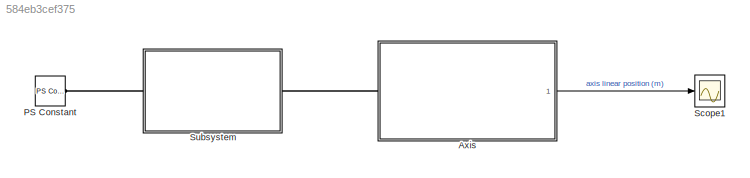
MODEL slx_584eb3cef375
KIND model
CONFIG AbsTol = auto
CONFIG FixedStep = auto
CONFIG MaxStep = auto
CONFIG MinStep = auto
CONFIG RelTol = 1e-3
CONFIG SampleTimeConstraint = Unconstrained
CONFIG Solver = ode23t
CONFIG SolverMode = Auto
CONFIG SolverName = ode23t
CONFIG StartTime = 0.0
CONFIG StopTime = 1
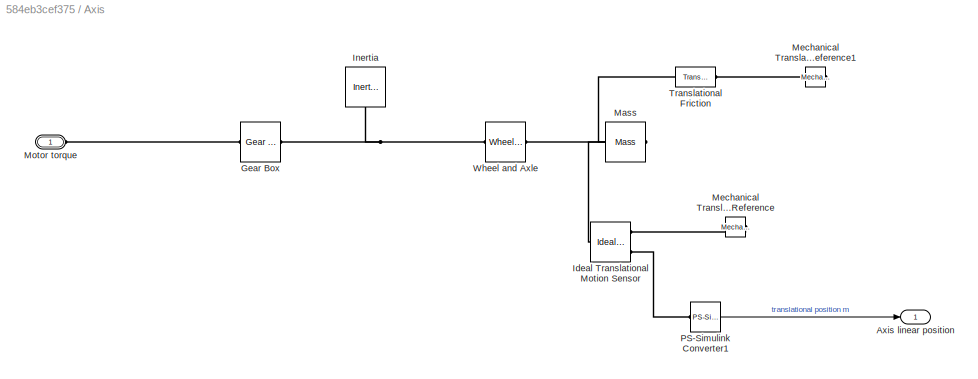
BLOCK [SubSystem] Axis
  Ports = [0, 1, 0, 0, 0, 1]
  RequestExecContextInheritance = off
  Variant = off
BLOCK [Outport] Axis/Axis linear position
  IconDisplay = Port number
BLOCK [Reference] Axis/Gear Box  REF=fl_lib/Mechanical/Mechanisms/Gear Box
  Ports = [0, 0, 0, 0, 0, 1, 1]
  SourceBlock = fl_lib/Mechanical/Mechanisms/Gear Box
  SourceType = Gear Box
BLOCK [Reference] Axis/Ideal Translational Motion Sensor  REF=fl_lib/Mechanical/Mechanical Sensors/Ideal Translational
Motion Sensor
  Ports = [0, 0, 0, 0, 0, 1, 3]
  SourceBlock = fl_lib/Mechanical/Mechanical Sensors/Ideal Translational\nMotion Sensor
  SourceType = Ideal Translational\nMotion Sensor
BLOCK [Reference] Axis/Inertia  REF=fl_lib/Mechanical/Rotational Elements/Inertia
  Ports = [0, 0, 0, 0, 0, 1]
  SourceBlock = fl_lib/Mechanical/Rotational Elements/Inertia
  SourceType = Inertia
BLOCK [Reference] Axis/Mass  REF=fl_lib/Mechanical/Translational
Elements/Mass
  Ports = [0, 0, 0, 0, 0, 1]
  SourceBlock = fl_lib/Mechanical/Translational\nElements/Mass
  SourceType = Mass
BLOCK [Reference] Axis/Mechanical Translational Reference  REF=fl_lib/Mechanical/Translational
Elements/Mechanical
Translational
Reference
  Ports = [0, 0, 0, 0, 0, 1]
  SourceBlock = fl_lib/Mechanical/Translational\nElements/Mechanical\nTranslational\nReference
  SourceType = Mechanical\nTranslational\nReference
BLOCK [Reference] Axis/Mechanical Translational Reference1  REF=fl_lib/Mechanical/Translational
Elements/Mechanical
Translational
Reference
  Ports = [0, 0, 0, 0, 0, 1]
  SourceBlock = fl_lib/Mechanical/Translational\nElements/Mechanical\nTranslational\nReference
  SourceType = Mechanical\nTranslational\nReference
BLOCK [PMIOPort] Axis/Motor torque
  Port = 1
  Side = Left
BLOCK [Reference] Axis/PS-Simulink Converter1  REF=nesl_utility/PS-Simulink
Converter
  Ports = [0, 1, 0, 0, 0, 1]
  SourceBlock = nesl_utility/PS-Simulink\nConverter
  SourceType = PS-Simulink\nConverter
BLOCK [Reference] Axis/Translational Friction  REF=fl_lib/Mechanical/Translational
Elements/Translational
Friction
  Ports = [0, 0, 0, 0, 0, 1, 1]
  SourceBlock = fl_lib/Mechanical/Translational\nElements/Translational\nFriction
  SourceType = Translational\nFriction
BLOCK [Reference] Axis/Wheel and Axle  REF=fl_lib/Mechanical/Mechanisms/Wheel and Axle
  Ports = [0, 0, 0, 0, 0, 1, 1]
  SourceBlock = fl_lib/Mechanical/Mechanisms/Wheel and Axle
  SourceType = Wheel and Axle
BLOCK [Reference] PS Constant  REF=fl_lib/Physical Signals/Sources/PS Constant
  Ports = [0, 0, 0, 0, 0, 0, 1]
  SourceBlock = fl_lib/Physical Signals/Sources/PS Constant
  SourceType = PS Constant
BLOCK [Scope] Scope1
  Ports = [1]
  ScopeSpecificationString = Simulink.scopes.TimeScopeBlockCfg('CurrentConfiguration', extmgr.ConfigurationSet(extmgr.Configuration('Core','General UI',true,'FigureColor',[0.501960784313725 0.501960784313725 0.501960784313725]),extmgr.Configuration('Core','Source UI',true),extmgr.Configuration('Sources','WiredSimulink',true,'DataLoggingVariableName','ScopeData1','DataLoggingSaveFormat','StructureWithTime','DataLoggingLimitDat...<+2909ch>
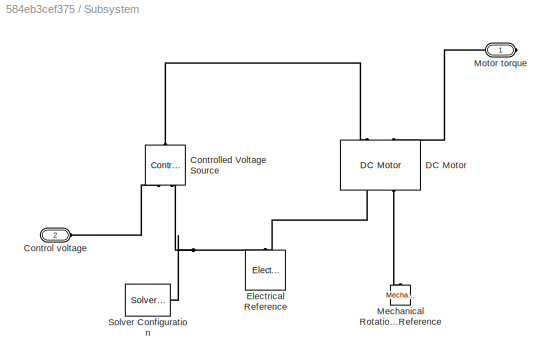
BLOCK [SubSystem] Subsystem
  Ports = [0, 0, 0, 0, 0, 1, 1]
  RequestExecContextInheritance = off
  Variant = off
BLOCK [PMIOPort] Subsystem/Control voltage
  Port = 2
  Side = Left
BLOCK [Reference] Subsystem/Controlled Voltage Source  REF=fl_lib/Electrical/Electrical Sources/Controlled Voltage
Source
  Ports = [0, 0, 0, 0, 0, 1, 2]
  SourceBlock = fl_lib/Electrical/Electrical Sources/Controlled Voltage\nSource
  SourceType = Controlled Voltage\nSource
BLOCK [Reference] Subsystem/DC Motor  REF=elec_lib/Actuators & Drivers/Rotational Actuators/DC Motor
  Ports = [0, 0, 0, 0, 0, 2, 2]
  SourceBlock = elec_lib/Actuators & Drivers/Rotational Actuators/DC Motor
  SourceType = DC Motor
BLOCK [Reference] Subsystem/Electrical Reference  REF=fl_lib/Electrical/Electrical Elements/Electrical Reference
  Ports = [0, 0, 0, 0, 0, 1]
  SourceBlock = fl_lib/Electrical/Electrical Elements/Electrical Reference
  SourceType = Electrical Reference
BLOCK [Reference] Subsystem/Mechanical Rotational Reference  REF=fl_lib/Mechanical/Rotational Elements/Mechanical
Rotational Reference
  Ports = [0, 0, 0, 0, 0, 1]
  SourceBlock = fl_lib/Mechanical/Rotational Elements/Mechanical\nRotational Reference
  SourceType = Mechanical\nRotational Reference
BLOCK [PMIOPort] Subsystem/Motor torque
  Port = 1
  Side = Right
BLOCK [Reference] Subsystem/Solver Configuration  REF=nesl_utility/Solver
Configuration
  Ports = [0, 0, 0, 0, 0, 0, 1]
  SourceBlock = nesl_utility/Solver\nConfiguration
  SourceType = Solver\nConfiguration
LINE Axis/PS-Simulink Converter1:1 -> Axis/Axis linear position:1
LINE Axis:1 -> Scope1:1
PLINE Axis/Gear Box:LConn1 -- Axis/Motor torque:RConn1
PNET net1: Axis/Gear Box:RConn1 -- Axis/Inertia:LConn1 -- Axis/Wheel and Axle:LConn1
PNET net2: Axis/Ideal Translational Motion Sensor:LConn1 -- Axis/Mass:LConn1 -- Axis/Translational Friction:LConn1 -- Axis/Wheel and Axle:RConn1
PLINE Axis/Ideal Translational Motion Sensor:RConn1 -- Axis/Mechanical Translational Reference:LConn1
PLINE Axis/Ideal Translational Motion Sensor:RConn3 -- Axis/PS-Simulink Converter1:LConn1
PLINE Axis/Mechanical Translational Reference1:LConn1 -- Axis/Translational Friction:RConn1
PLINE Axis:LConn1 -- Subsystem:RConn1
PLINE PS Constant:RConn1 -- Subsystem:LConn1
PLINE Subsystem/Control voltage:RConn1 -- Subsystem/Controlled Voltage Source:RConn1
PLINE Subsystem/Controlled Voltage Source:LConn1 -- Subsystem/DC Motor:LConn1
PNET net3: Subsystem/Controlled Voltage Source:RConn2 -- Subsystem/DC Motor:RConn1 -- Subsystem/Electrical Reference:LConn1 -- Subsystem/Solver Configuration:RConn1
PLINE Subsystem/DC Motor:LConn2 -- Subsystem/Motor torque:RConn1
PLINE Subsystem/DC Motor:RConn2 -- Subsystem/Mechanical Rotational Reference:LConn1
note: PNET lines group multi-terminal physical nets as a canonical sorted terminal list (undirected conserving connections); 2-terminal nets keep the pairwise PLINE form
